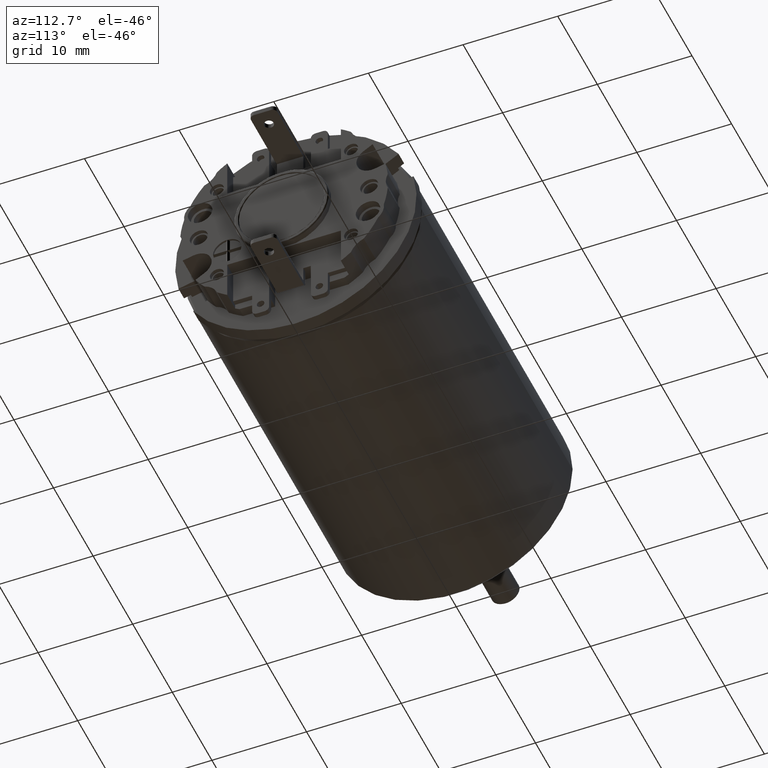
[diagram: clean part render]
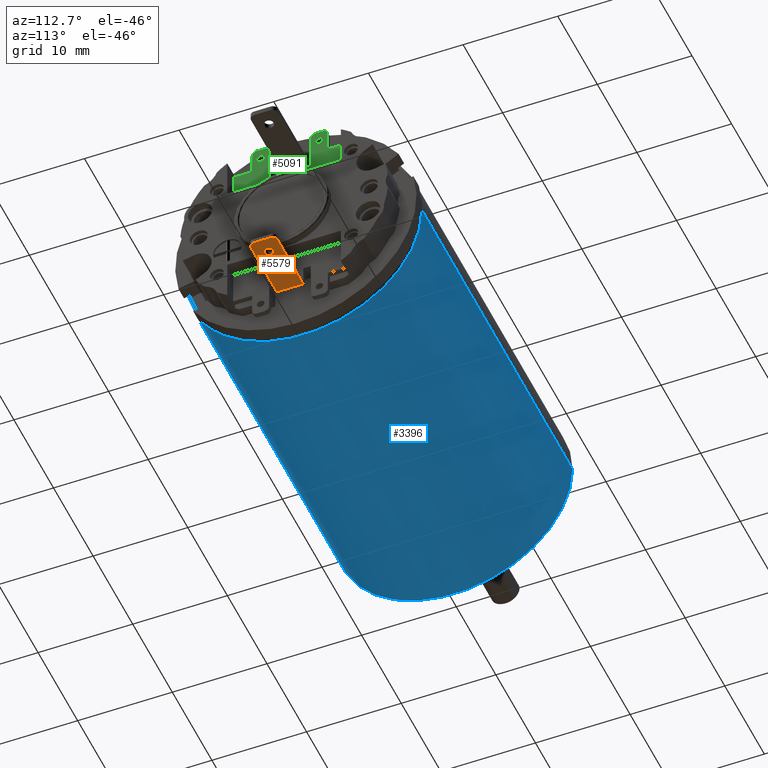
[diagram: same view with three faces highlighted in distinct colors, each labeled with its STEP entity id]
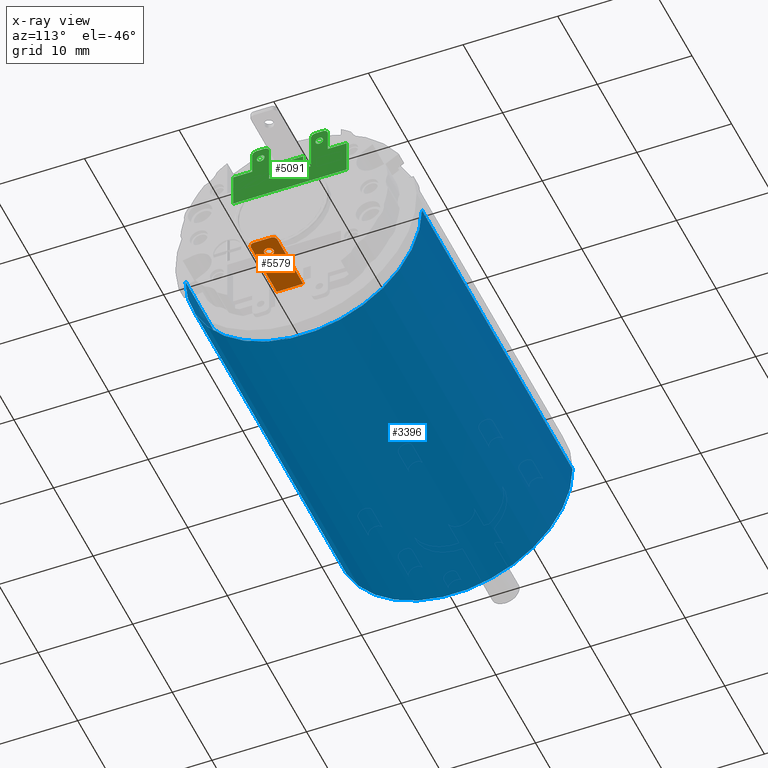
[diagram: x-ray of the same camera — body ghosted, the three highlighted faces saturated]
A machine part, auxiliary view with three faces highlighted in distinct colors.
The next image is the same camera in x-ray (body ghosted, the three faces saturated) — at least one of them is partly hidden behind the body in this view.
Their STEP definitions:

[orange] entity #5579 — the highlighted planar face has unit normal (0, 0, -1).
#1723=DIRECTION('',(0.E0,1.E0,0.E0));
#1724=VECTOR('',#1723,1.8E0);
#1725=CARTESIAN_POINT('',(4.9E1,-9.E-1,-9.2E0));
#1726=LINE('',#1725,#1724);
#1759=CARTESIAN_POINT('',(4.73E1,0.E0,-9.2E0));
#1760=DIRECTION('',(0.E0,0.E0,-1.E0));
#1761=DIRECTION('',(1.E0,0.E0,0.E0));
#1762=AXIS2_PLACEMENT_3D('',#1759,#1760,#1761);
#1764=CARTESIAN_POINT('',(4.73E1,0.E0,-9.2E0));
#1765=DIRECTION('',(0.E0,0.E0,-1.E0));
#1766=DIRECTION('',(-1.E0,0.E0,0.E0));
#1767=AXIS2_PLACEMENT_3D('',#1764,#1765,#1766);
#1769=CARTESIAN_POINT('',(4.85E1,9.E-1,-9.2E0));
#1770=DIRECTION('',(0.E0,0.E0,-1.E0));
#1771=DIRECTION('',(0.E0,1.E0,0.E0));
#1772=AXIS2_PLACEMENT_3D('',#1769,#1770,#1771);
#1774=DIRECTION('',(-1.E0,0.E0,0.E0));
#1775=VECTOR('',#1774,6.5E0);
#1776=CARTESIAN_POINT('',(4.85E1,1.4E0,-9.2E0));
#1777=LINE('',#1776,#1775);
#1778=DIRECTION('',(0.E0,-1.E0,0.E0));
#1779=VECTOR('',#1778,2.8E0);
#1780=CARTESIAN_POINT('',(4.2E1,1.4E0,-9.2E0));
#1781=LINE('',#1780,#1779);
#1782=DIRECTION('',(1.E0,0.E0,0.E0));
#1783=VECTOR('',#1782,6.5E0);
#1784=CARTESIAN_POINT('',(4.2E1,-1.4E0,-9.2E0));
#1785=LINE('',#1784,#1783);
#1786=CARTESIAN_POINT('',(4.85E1,-9.E-1,-9.2E0));
#1787=DIRECTION('',(0.E0,0.E0,-1.E0));
#1788=DIRECTION('',(1.E0,-2.264854970235E-14,0.E0));
#1789=AXIS2_PLACEMENT_3D('',#1786,#1787,#1788);
#3128=CARTESIAN_POINT('',(4.2E1,-1.4E0,-9.2E0));
#3130=VERTEX_POINT('',#3128);
#3131=CARTESIAN_POINT('',(4.2E1,1.4E0,-9.2E0));
#3132=VERTEX_POINT('',#3131);
#3139=CARTESIAN_POINT('',(4.78E1,0.E0,-9.2E0));
#3140=CARTESIAN_POINT('',(4.68E1,0.E0,-9.2E0));
#3141=VERTEX_POINT('',#3139);
#3142=VERTEX_POINT('',#3140);
#3171=CARTESIAN_POINT('',(4.85E1,1.4E0,-9.2E0));
#3172=VERTEX_POINT('',#3171);
#3173=CARTESIAN_POINT('',(4.9E1,9.E-1,-9.2E0));
#3174=VERTEX_POINT('',#3173);
#3175=CARTESIAN_POINT('',(4.9E1,-9.E-1,-9.2E0));
#3176=CARTESIAN_POINT('',(4.85E1,-1.4E0,-9.2E0));
#3177=VERTEX_POINT('',#3175);
#3178=VERTEX_POINT('',#3176);
#5559=CARTESIAN_POINT('',(4.15E1,-1.4E0,-9.2E0));
#5560=DIRECTION('',(0.E0,0.E0,-1.E0));
#5561=DIRECTION('',(0.E0,1.E0,0.E0));
#5562=AXIS2_PLACEMENT_3D('',#5559,#5560,#5561);
#5563=PLANE('',#5562);
#5564=ORIENTED_EDGE('',*,*,#5518,.F.);
#5566=ORIENTED_EDGE('',*,*,#5565,.T.);
#5568=ORIENTED_EDGE('',*,*,#5567,.T.);
#5570=ORIENTED_EDGE('',*,*,#5569,.T.);
#5571=ORIENTED_EDGE('',*,*,#5550,.F.);
#5572=ORIENTED_EDGE('',*,*,#5500,.T.);
#5573=EDGE_LOOP('',(#5564,#5566,#5568,#5570,#5571,#5572));
#5574=FACE_OUTER_BOUND('',#5573,.F.);
#5575=ORIENTED_EDGE('',*,*,#5392,.T.);
#5576=ORIENTED_EDGE('',*,*,#5421,.T.);
#5577=EDGE_LOOP('',(#5575,#5576));
#5578=FACE_BOUND('',#5577,.F.);
#5579=ADVANCED_FACE('',(#5574,#5578),#5563,.T.);
#1763=CIRCLE('',#1762,5.E-1);
#1768=CIRCLE('',#1767,5.E-1);
#1773=CIRCLE('',#1772,5.E-1);
#1790=CIRCLE('',#1789,5.E-1);
#5392=EDGE_CURVE('',#3141,#3142,#1763,.T.);
#5421=EDGE_CURVE('',#3142,#3141,#1768,.T.);
#5500=EDGE_CURVE('',#3177,#3174,#1726,.T.);
#5518=EDGE_CURVE('',#3172,#3174,#1773,.T.);
#5550=EDGE_CURVE('',#3177,#3178,#1790,.T.);
#5565=EDGE_CURVE('',#3172,#3132,#1777,.T.);
#5567=EDGE_CURVE('',#3132,#3130,#1781,.T.);
#5569=EDGE_CURVE('',#3130,#3178,#1785,.T.);

[blue] entity #3396 — the highlighted cylindrical surface (partial cylindrical patch) has radius 12.5 mm, axis along (-1, 0, 0).
#1=CARTESIAN_POINT('',(5.E-1,0.E0,0.E0));
#2=DIRECTION('',(-1.E0,0.E0,0.E0));
#3=DIRECTION('',(0.E0,1.E0,0.E0));
#4=AXIS2_PLACEMENT_3D('',#1,#2,#3);
#24=DIRECTION('',(-1.E0,3.995624997394E-8,1.734572483085E-11));
#25=VECTOR('',#24,3.805000152052E1);
#26=CARTESIAN_POINT('',(3.855000152052E1,-1.250000152034E1,
-6.600076317459E-10));
#27=LINE('',#26,#25);
#28=DIRECTION('',(-1.E0,-3.995624992725E-8,-1.734583206E-11));
#29=VECTOR('',#28,3.805000152052E1);
#30=CARTESIAN_POINT('',(3.855000152052E1,1.250000152034E1,6.600089362578E-10));
#31=LINE('',#30,#29);
#40=CARTESIAN_POINT('',(3.854999783242E1,0.E0,0.E0));
#41=DIRECTION('',(-1.E0,0.E0,0.E0));
#42=DIRECTION('',(0.E0,1.E0,0.E0));
#43=AXIS2_PLACEMENT_3D('',#40,#41,#42);
#3095=CARTESIAN_POINT('',(5.E-1,1.25E1,0.E0));
#3097=VERTEX_POINT('',#3095);
#3099=CARTESIAN_POINT('',(5.E-1,-1.25E1,0.E0));
#3101=VERTEX_POINT('',#3099);
#3103=CARTESIAN_POINT('',(3.854999783242E1,1.25E1,0.E0));
#3104=CARTESIAN_POINT('',(3.854999783242E1,-1.25E1,0.E0));
#3105=VERTEX_POINT('',#3103);
#3106=VERTEX_POINT('',#3104);
#3385=CARTESIAN_POINT('',(4.074E1,0.E0,0.E0));
#3386=DIRECTION('',(-1.E0,0.E0,0.E0));
#3387=DIRECTION('',(0.E0,1.E0,0.E0));
#3388=AXIS2_PLACEMENT_3D('',#3385,#3386,#3387);
#3389=CYLINDRICAL_SURFACE('',#3388,1.25E1);
#3390=ORIENTED_EDGE('',*,*,#3376,.F.);
#3391=ORIENTED_EDGE('',*,*,#3351,.T.);
#3392=ORIENTED_EDGE('',*,*,#3322,.T.);
#3393=ORIENTED_EDGE('',*,*,#3348,.F.);
#3394=EDGE_LOOP('',(#3390,#3391,#3392,#3393));
#3395=FACE_OUTER_BOUND('',#3394,.F.);
#3396=ADVANCED_FACE('',(#3395),#3389,.T.);
#5=CIRCLE('',#4,1.25E1);
#44=CIRCLE('',#43,1.25E1);
#3322=EDGE_CURVE('',#3097,#3101,#5,.T.);
#3348=EDGE_CURVE('',#3106,#3101,#27,.T.);
#3351=EDGE_CURVE('',#3105,#3097,#31,.T.);
#3376=EDGE_CURVE('',#3105,#3106,#44,.T.);

[green] entity #5091 — the highlighted planar face has unit normal (1, 0, 0).
#374=DIRECTION('',(0.E0,0.E0,1.E0));
#375=VECTOR('',#374,3.7E0);
#376=CARTESIAN_POINT('',(4.2E1,6.E0,5.E0));
#377=LINE('',#376,#375);
#386=DIRECTION('',(0.E0,1.E0,0.E0));
#387=VECTOR('',#386,1.2E1);
#388=CARTESIAN_POINT('',(4.2E1,-6.E0,5.E0));
#389=LINE('',#388,#387);
#394=DIRECTION('',(0.E0,0.E0,-1.E0));
#395=VECTOR('',#394,3.7E0);
#396=CARTESIAN_POINT('',(4.2E1,-6.E0,8.7E0));
#397=LINE('',#396,#395);
#1269=CARTESIAN_POINT('',(4.2E1,3.5E0,1.09E1));
#1270=DIRECTION('',(1.E0,0.E0,0.E0));
#1271=DIRECTION('',(0.E0,1.E0,0.E0));
#1272=AXIS2_PLACEMENT_3D('',#1269,#1270,#1271);
#1274=DIRECTION('',(0.E0,0.E0,1.E0));
#1275=VECTOR('',#1274,2.2E0);
#1276=CARTESIAN_POINT('',(4.2E1,4.E0,8.7E0));
#1277=LINE('',#1276,#1275);
#1278=DIRECTION('',(0.E0,-1.E0,0.E0));
#1279=VECTOR('',#1278,2.E0);
#1280=CARTESIAN_POINT('',(4.2E1,6.E0,8.7E0));
#1281=LINE('',#1280,#1279);
#1282=DIRECTION('',(0.E0,-1.E0,0.E0));
#1283=VECTOR('',#1282,2.E0);
#1284=CARTESIAN_POINT('',(4.2E1,-4.E0,8.7E0));
#1285=LINE('',#1284,#1283);
#1286=DIRECTION('',(0.E0,0.E0,-1.E0));
#1287=VECTOR('',#1286,2.2E0);
#1288=CARTESIAN_POINT('',(4.2E1,-4.E0,1.09E1));
#1289=LINE('',#1288,#1287);
#1290=CARTESIAN_POINT('',(4.2E1,-3.5E0,1.09E1));
#1291=DIRECTION('',(1.E0,0.E0,0.E0));
#1292=DIRECTION('',(0.E0,0.E0,1.E0));
#1293=AXIS2_PLACEMENT_3D('',#1290,#1291,#1292);
#1295=DIRECTION('',(0.E0,-1.E0,0.E0));
#1296=VECTOR('',#1295,8.E-1);
#1297=CARTESIAN_POINT('',(4.2E1,-2.7E0,1.14E1));
#1298=LINE('',#1297,#1296);
#1299=CARTESIAN_POINT('',(4.2E1,-2.7E0,1.09E1));
#1300=DIRECTION('',(1.E0,0.E0,0.E0));
#1301=DIRECTION('',(0.E0,1.E0,0.E0));
#1302=AXIS2_PLACEMENT_3D('',#1299,#1300,#1301);
#1304=DIRECTION('',(0.E0,0.E0,1.E0));
#1305=VECTOR('',#1304,3.9E0);
#1306=CARTESIAN_POINT('',(4.2E1,-2.2E0,7.E0));
#1307=LINE('',#1306,#1305);
#1308=DIRECTION('',(0.E0,-1.E0,0.E0));
#1309=VECTOR('',#1308,8.E-1);
#1310=CARTESIAN_POINT('',(4.2E1,-1.4E0,7.E0));
#1311=LINE('',#1310,#1309);
#1312=DIRECTION('',(0.E0,0.E0,-1.E0));
#1313=VECTOR('',#1312,1.7E0);
#1314=CARTESIAN_POINT('',(4.2E1,-1.4E0,8.7E0));
#1315=LINE('',#1314,#1313);
#1316=DIRECTION('',(0.E0,1.E0,0.E0));
#1317=VECTOR('',#1316,2.8E0);
#1318=CARTESIAN_POINT('',(4.2E1,-1.4E0,8.7E0));
#1319=LINE('',#1318,#1317);
#1320=DIRECTION('',(0.E0,0.E0,1.E0));
#1321=VECTOR('',#1320,1.7E0);
#1322=CARTESIAN_POINT('',(4.2E1,1.4E0,7.E0));
#1323=LINE('',#1322,#1321);
#1324=DIRECTION('',(0.E0,-1.E0,0.E0));
#1325=VECTOR('',#1324,8.E-1);
#1326=CARTESIAN_POINT('',(4.2E1,2.2E0,7.E0));
#1327=LINE('',#1326,#1325);
#1328=DIRECTION('',(0.E0,0.E0,-1.E0));
#1329=VECTOR('',#1328,3.9E0);
#1330=CARTESIAN_POINT('',(4.2E1,2.2E0,1.09E1));
#1331=LINE('',#1330,#1329);
#1332=CARTESIAN_POINT('',(4.2E1,2.7E0,1.09E1));
#1333=DIRECTION('',(1.E0,0.E0,0.E0));
#1334=DIRECTION('',(0.E0,0.E0,1.E0));
#1335=AXIS2_PLACEMENT_3D('',#1332,#1333,#1334);
#1337=DIRECTION('',(0.E0,-1.E0,0.E0));
#1338=VECTOR('',#1337,8.E-1);
#1339=CARTESIAN_POINT('',(4.2E1,3.5E0,1.14E1));
#1340=LINE('',#1339,#1338);
#1413=CARTESIAN_POINT('',(4.2E1,3.1E0,1.02E1));
#1414=DIRECTION('',(1.E0,0.E0,0.E0));
#1415=DIRECTION('',(0.E0,0.E0,-1.E0));
#1416=AXIS2_PLACEMENT_3D('',#1413,#1414,#1415);
#1418=CARTESIAN_POINT('',(4.2E1,3.1E0,1.02E1));
#1419=DIRECTION('',(1.E0,0.E0,0.E0));
#1420=DIRECTION('',(0.E0,0.E0,1.E0));
#1421=AXIS2_PLACEMENT_3D('',#1418,#1419,#1420);
#1423=CARTESIAN_POINT('',(4.2E1,-3.1E0,1.02E1));
#1424=DIRECTION('',(1.E0,0.E0,0.E0));
#1425=DIRECTION('',(0.E0,0.E0,-1.E0));
#1426=AXIS2_PLACEMENT_3D('',#1423,#1424,#1425);
#1428=CARTESIAN_POINT('',(4.2E1,-3.1E0,1.02E1));
#1429=DIRECTION('',(1.E0,0.E0,0.E0));
#1430=DIRECTION('',(0.E0,0.E0,1.E0));
#1431=AXIS2_PLACEMENT_3D('',#1428,#1429,#1430);
#2691=CARTESIAN_POINT('',(4.2E1,2.2E0,7.E0));
#2692=CARTESIAN_POINT('',(4.2E1,1.4E0,7.E0));
#2693=VERTEX_POINT('',#2691);
#2694=VERTEX_POINT('',#2692);
#2695=CARTESIAN_POINT('',(4.2E1,-1.4E0,7.E0));
#2696=CARTESIAN_POINT('',(4.2E1,-2.2E0,7.E0));
#2697=VERTEX_POINT('',#2695);
#2698=VERTEX_POINT('',#2696);
#2707=CARTESIAN_POINT('',(4.2E1,-6.E0,5.E0));
#2708=VERTEX_POINT('',#2707);
#2709=CARTESIAN_POINT('',(4.2E1,6.E0,5.E0));
#2710=VERTEX_POINT('',#2709);
#2719=CARTESIAN_POINT('',(4.2E1,4.E0,1.09E1));
#2720=VERTEX_POINT('',#2719);
#2721=CARTESIAN_POINT('',(4.2E1,3.5E0,1.14E1));
#2722=VERTEX_POINT('',#2721);
#2727=CARTESIAN_POINT('',(4.2E1,-3.5E0,1.14E1));
#2728=VERTEX_POINT('',#2727);
#2729=CARTESIAN_POINT('',(4.2E1,-4.E0,1.09E1));
#2730=VERTEX_POINT('',#2729);
#2755=CARTESIAN_POINT('',(4.2E1,4.E0,8.7E0));
#2756=VERTEX_POINT('',#2755);
#2757=CARTESIAN_POINT('',(4.2E1,2.7E0,1.14E1));
#2758=VERTEX_POINT('',#2757);
#2759=CARTESIAN_POINT('',(4.2E1,2.2E0,1.09E1));
#2760=VERTEX_POINT('',#2759);
#2761=CARTESIAN_POINT('',(4.2E1,-2.2E0,1.09E1));
#2762=VERTEX_POINT('',#2761);
#2763=CARTESIAN_POINT('',(4.2E1,-2.7E0,1.14E1));
#2764=VERTEX_POINT('',#2763);
#2765=CARTESIAN_POINT('',(4.2E1,-4.E0,8.7E0));
#2766=VERTEX_POINT('',#2765);
#2795=CARTESIAN_POINT('',(4.2E1,3.1E0,9.8E0));
#2796=CARTESIAN_POINT('',(4.2E1,3.1E0,1.06E1));
#2797=VERTEX_POINT('',#2795);
#2798=VERTEX_POINT('',#2796);
#2799=CARTESIAN_POINT('',(4.2E1,-3.1E0,9.8E0));
#2800=CARTESIAN_POINT('',(4.2E1,-3.1E0,1.06E1));
#2801=VERTEX_POINT('',#2799);
#2802=VERTEX_POINT('',#2800);
#2851=CARTESIAN_POINT('',(4.2E1,-6.E0,8.7E0));
#2852=VERTEX_POINT('',#2851);
#2853=CARTESIAN_POINT('',(4.2E1,6.E0,8.7E0));
#2854=VERTEX_POINT('',#2853);
#3111=CARTESIAN_POINT('',(4.2E1,-1.4E0,8.7E0));
#3112=CARTESIAN_POINT('',(4.2E1,1.4E0,8.7E0));
#3113=VERTEX_POINT('',#3111);
#3114=VERTEX_POINT('',#3112);
#5036=CARTESIAN_POINT('',(4.2E1,0.E0,0.E0));
#5037=DIRECTION('',(1.E0,0.E0,0.E0));
#5038=DIRECTION('',(0.E0,0.E0,-1.E0));
#5039=AXIS2_PLACEMENT_3D('',#5036,#5037,#5038);
#5040=PLANE('',#5039);
#5042=ORIENTED_EDGE('',*,*,#5041,.F.);
#5044=ORIENTED_EDGE('',*,*,#5043,.F.);
#5045=ORIENTED_EDGE('',*,*,#3781,.F.);
#5046=ORIENTED_EDGE('',*,*,#3795,.F.);
#5047=ORIENTED_EDGE('',*,*,#3813,.F.);
#5048=ORIENTED_EDGE('',*,*,#3833,.F.);
#5050=ORIENTED_EDGE('',*,*,#5049,.F.);
#5052=ORIENTED_EDGE('',*,*,#5051,.F.);
#5054=ORIENTED_EDGE('',*,*,#5053,.F.);
#5056=ORIENTED_EDGE('',*,*,#5055,.F.);
#5058=ORIENTED_EDGE('',*,*,#5057,.F.);
#5060=ORIENTED_EDGE('',*,*,#5059,.F.);
#5062=ORIENTED_EDGE('',*,*,#5061,.F.);
#5064=ORIENTED_EDGE('',*,*,#5063,.F.);
#5066=ORIENTED_EDGE('',*,*,#5065,.T.);
#5068=ORIENTED_EDGE('',*,*,#5067,.F.);
#5070=ORIENTED_EDGE('',*,*,#5069,.F.);
#5072=ORIENTED_EDGE('',*,*,#5071,.F.);
#5074=ORIENTED_EDGE('',*,*,#5073,.F.);
#5076=ORIENTED_EDGE('',*,*,#5075,.F.);
#5077=EDGE_LOOP('',(#5042,#5044,#5045,#5046,#5047,#5048,#5050,#5052,#5054,#5056,
#5058,#5060,#5062,#5064,#5066,#5068,#5070,#5072,#5074,#5076));
#5078=FACE_OUTER_BOUND('',#5077,.F.);
#5080=ORIENTED_EDGE('',*,*,#5079,.T.);
#5082=ORIENTED_EDGE('',*,*,#5081,.T.);
#5083=EDGE_LOOP('',(#5080,#5082));
#5084=FACE_BOUND('',#5083,.F.);
#5086=ORIENTED_EDGE('',*,*,#5085,.T.);
#5088=ORIENTED_EDGE('',*,*,#5087,.T.);
#5089=EDGE_LOOP('',(#5086,#5088));
#5090=FACE_BOUND('',#5089,.F.);
#5091=ADVANCED_FACE('',(#5078,#5084,#5090),#5040,.T.);
#1273=CIRCLE('',#1272,5.E-1);
#1294=CIRCLE('',#1293,5.E-1);
#1303=CIRCLE('',#1302,5.E-1);
#1336=CIRCLE('',#1335,5.E-1);
#1417=CIRCLE('',#1416,4.E-1);
#1422=CIRCLE('',#1421,4.E-1);
#1427=CIRCLE('',#1426,4.E-1);
#1432=CIRCLE('',#1431,4.E-1);
#3781=EDGE_CURVE('',#2854,#2756,#1281,.T.);
#3795=EDGE_CURVE('',#2710,#2854,#377,.T.);
#3813=EDGE_CURVE('',#2708,#2710,#389,.T.);
#3833=EDGE_CURVE('',#2852,#2708,#397,.T.);
#5041=EDGE_CURVE('',#2720,#2722,#1273,.T.);
#5043=EDGE_CURVE('',#2756,#2720,#1277,.T.);
#5049=EDGE_CURVE('',#2766,#2852,#1285,.T.);
#5051=EDGE_CURVE('',#2730,#2766,#1289,.T.);
#5053=EDGE_CURVE('',#2728,#2730,#1294,.T.);
#5055=EDGE_CURVE('',#2764,#2728,#1298,.T.);
#5057=EDGE_CURVE('',#2762,#2764,#1303,.T.);
#5059=EDGE_CURVE('',#2698,#2762,#1307,.T.);
#5061=EDGE_CURVE('',#2697,#2698,#1311,.T.);
#5063=EDGE_CURVE('',#3113,#2697,#1315,.T.);
#5065=EDGE_CURVE('',#3113,#3114,#1319,.T.);
#5067=EDGE_CURVE('',#2694,#3114,#1323,.T.);
#5069=EDGE_CURVE('',#2693,#2694,#1327,.T.);
#5071=EDGE_CURVE('',#2760,#2693,#1331,.T.);
#5073=EDGE_CURVE('',#2758,#2760,#1336,.T.);
#5075=EDGE_CURVE('',#2722,#2758,#1340,.T.);
#5079=EDGE_CURVE('',#2797,#2798,#1417,.T.);
#5081=EDGE_CURVE('',#2798,#2797,#1422,.T.);
#5085=EDGE_CURVE('',#2801,#2802,#1427,.T.);
#5087=EDGE_CURVE('',#2802,#2801,#1432,.T.);